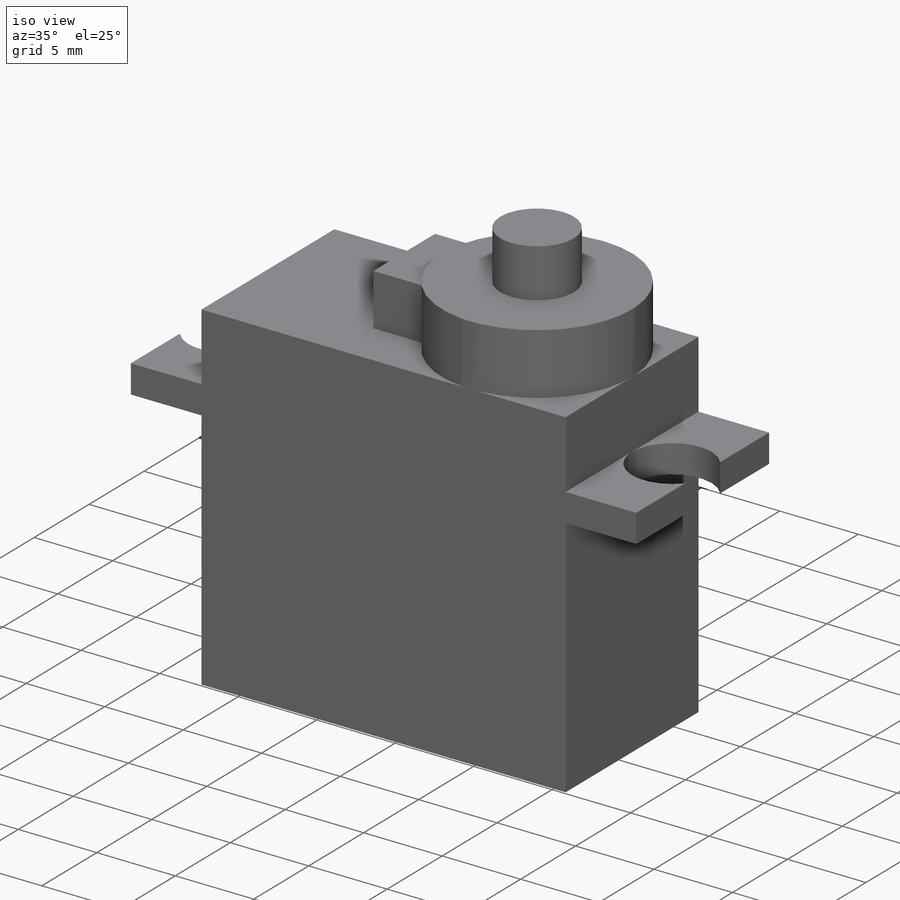
[diagram: iso view]
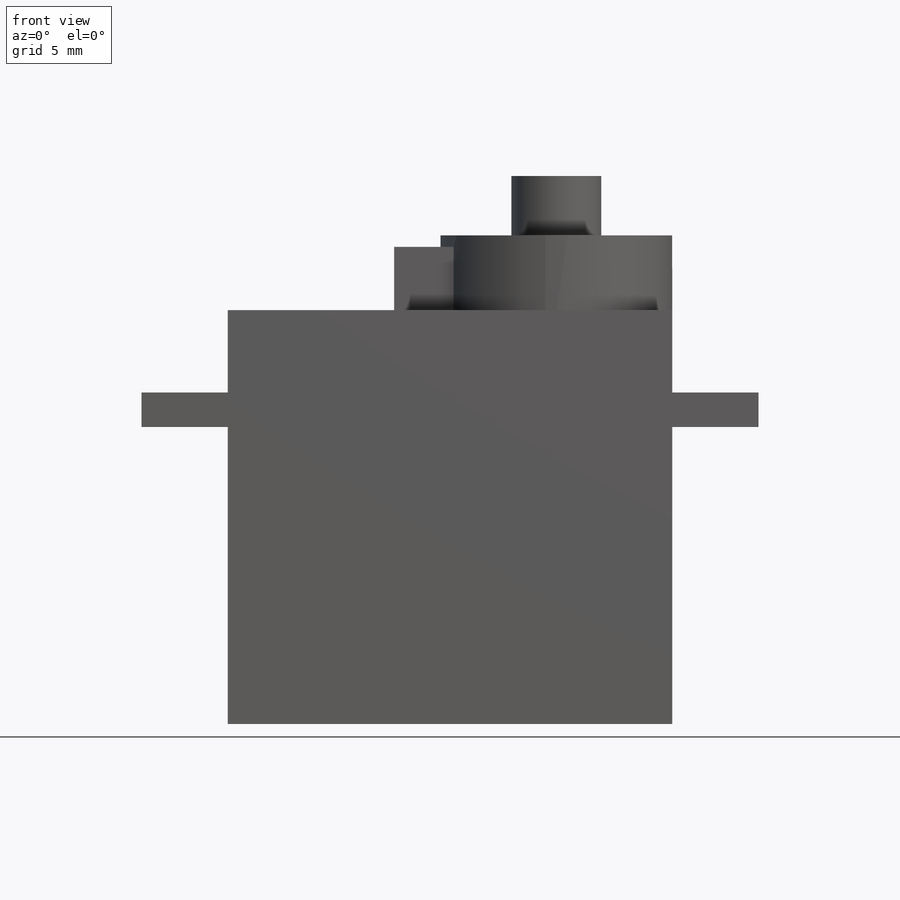
[diagram: front view]
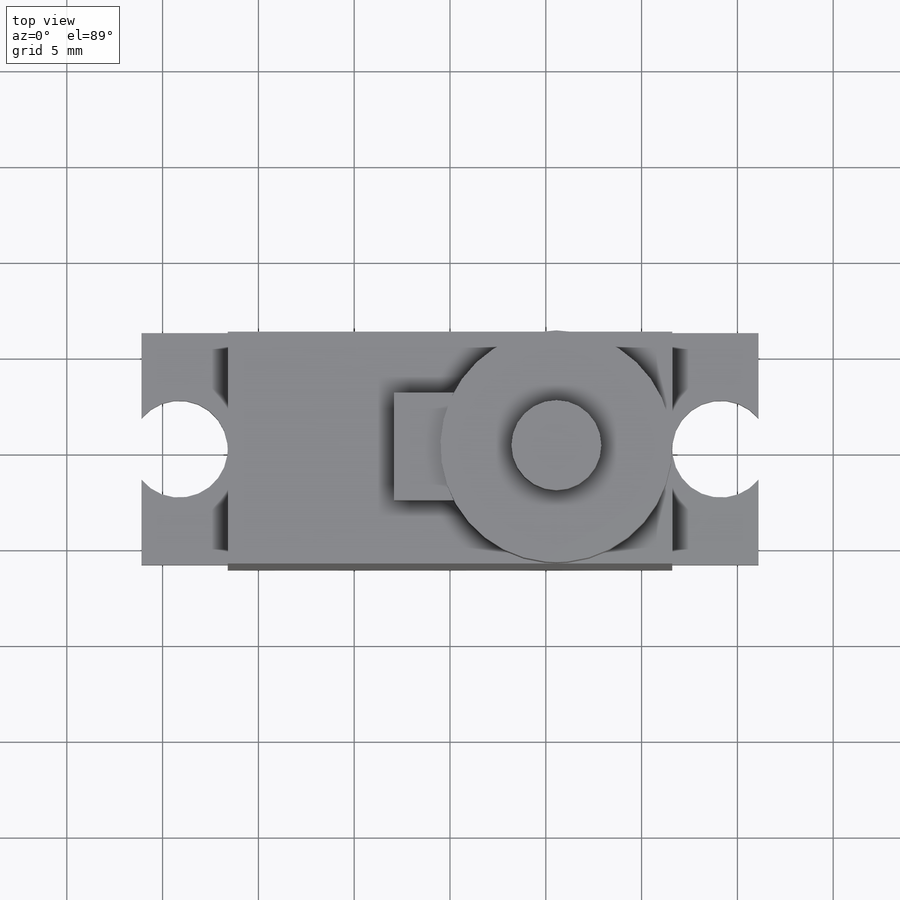
[diagram: top view]
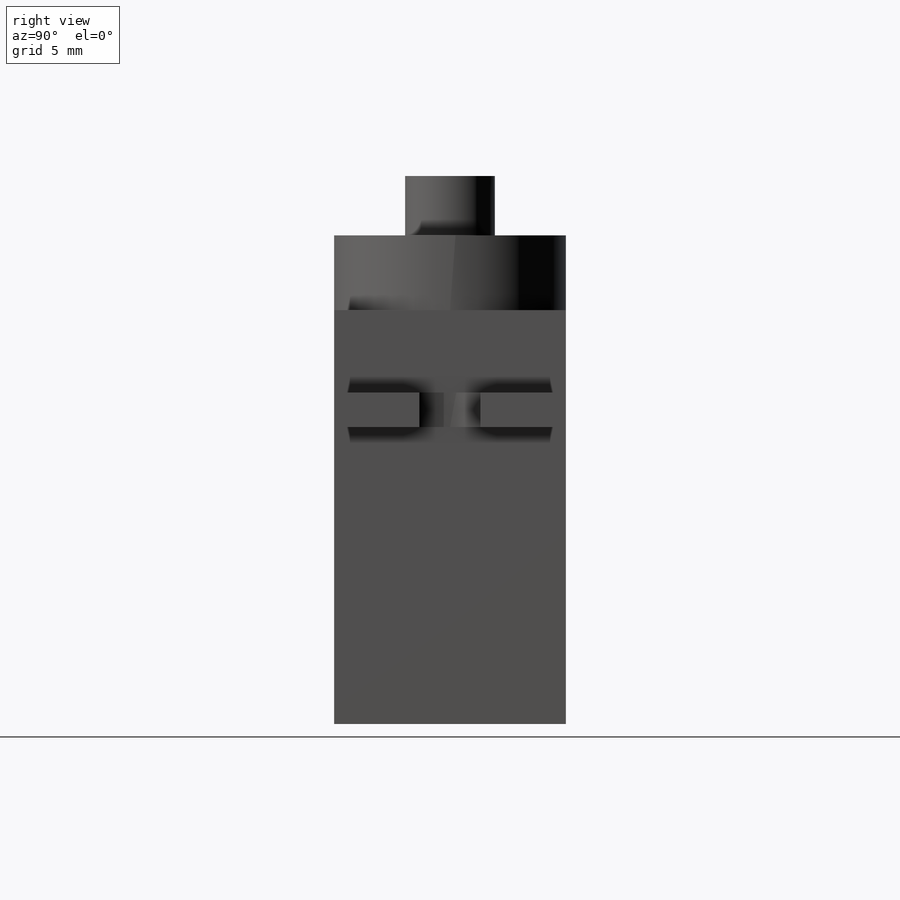
[diagram: right view]
SOLIDWORKS PART (.sldprt)
format: sldprt  version: not decoded by parser v0  size: 223,232 bytes
history: native  units: mm
features: sketch x6, extrude x5, material x1, plane x1 + 1 further entry (+10 scaffold rows collapsed)
feature tree (24):
  scaffold x10  (default folders/planes/origin — collapsed)
  material  "Material <not specified>"
  "Annotations"  RD1=12.1mm RD2=25.5mm
  sketch  "Sketch1"  dims[D1=23.2mm D2=12.1mm]
  extrude  "Boss-Extrude1"  Depth=21.6mm
  sketch  "Sketch2"  dims[D1=15.5mm]
  plane  "Plane1"
  sketch  "Sketch3"  dims[D1=4.5mm D2=4.45mm D3=4.45mm]
  extrude  "Boss-Extrude2"  Depth=1.8mm
  sketch  "Sketch5"  dims[D2=12.1mm D1=6.05mm]
  extrude  "Boss-Extrude3"  Depth=3.9mm
  sketch  "Sketch6"  dims[D1=4.69mm]
  extrude  "Boss-Extrude4"  Depth=3.1mm
  sketch  "Sketch7"  dims[D1=6.5mm D2=5.6mm D3=3.1mm]
  extrude  "Boss-Extrude5"  Depth=3.3mm
decode coverage: 11 of 11 modeling features carry decoded parameters; 1 rows unclassified (native names shown)
note: suppression state not decoded; provenance and decode notes live in map.json
